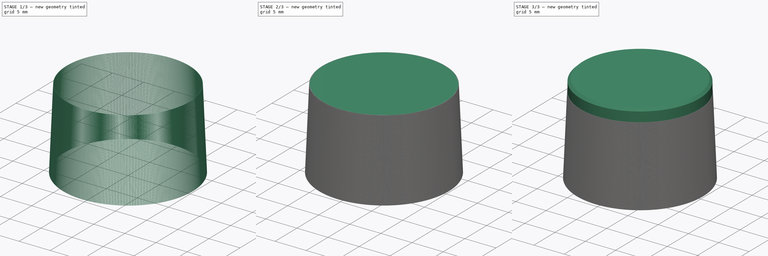
[diagram: build sequence overview — one tinted view per stage of 3, left to right]
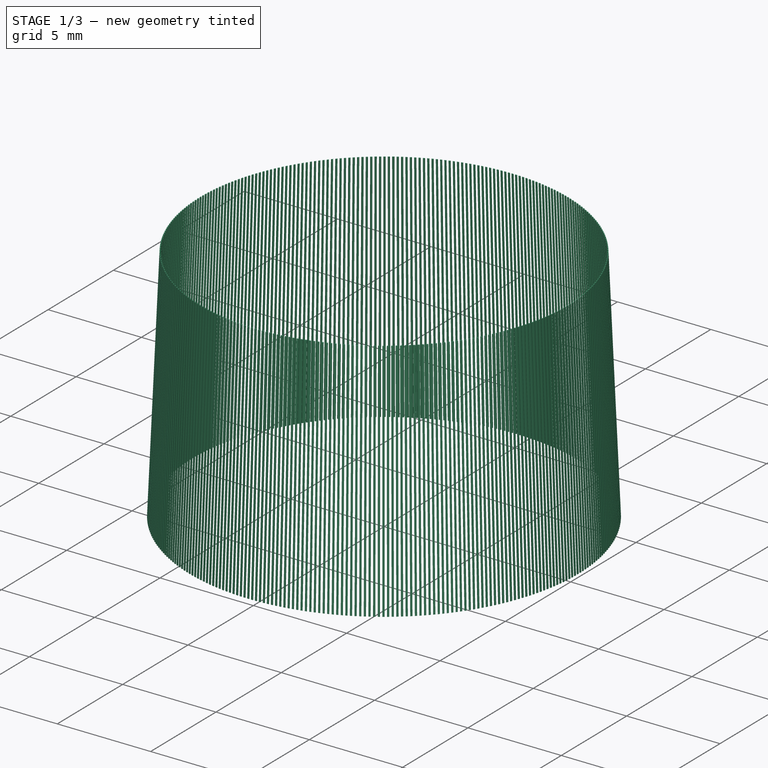
[diagram: stage 1 of 3 — iso view after this stage's code; geometry added in this stage tinted green]
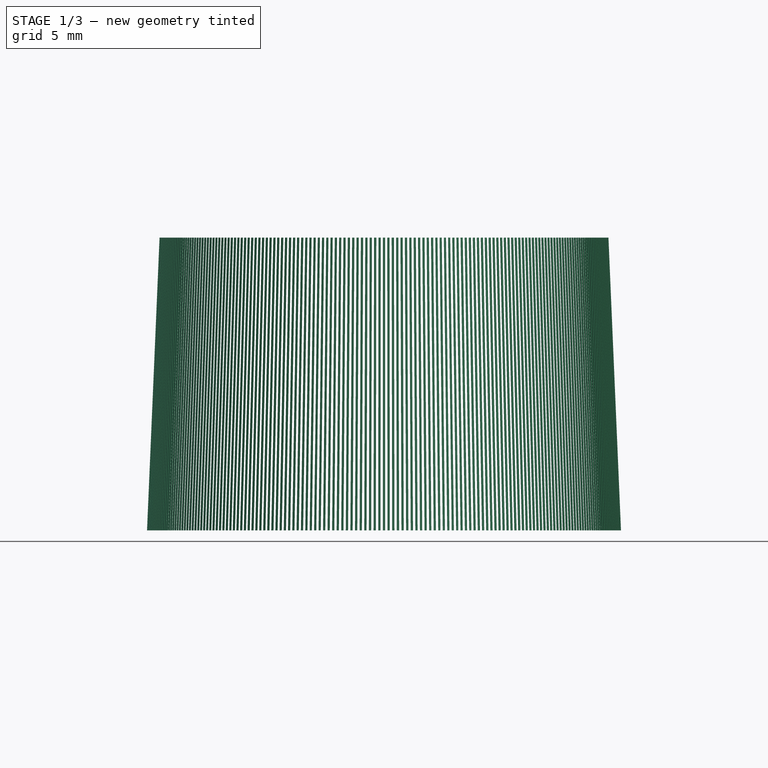
[diagram: stage 1 of 3 — front view after this stage's code; geometry added in this stage tinted green]
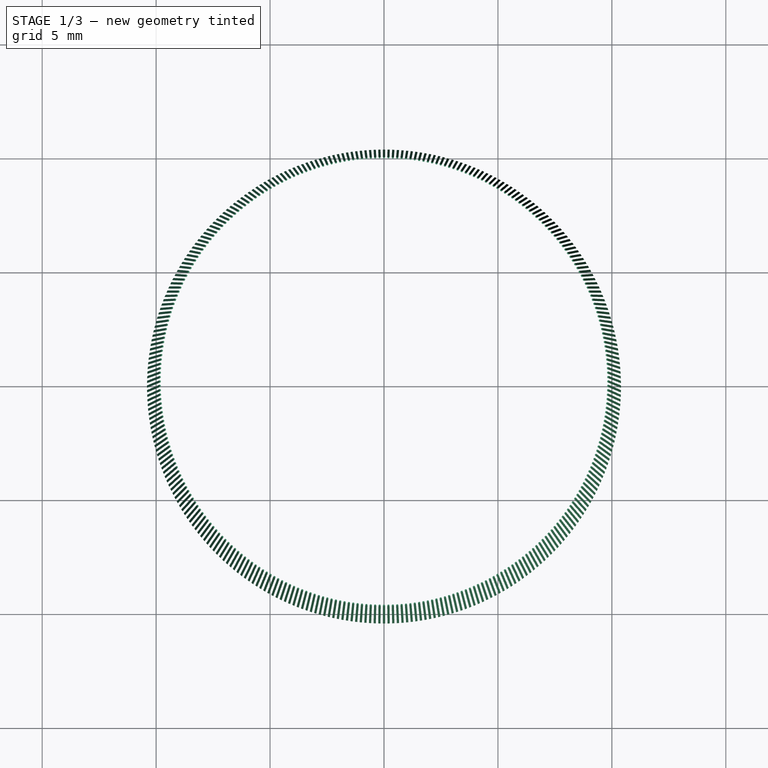
[diagram: stage 1 of 3 — top view after this stage's code; geometry added in this stage tinted green]
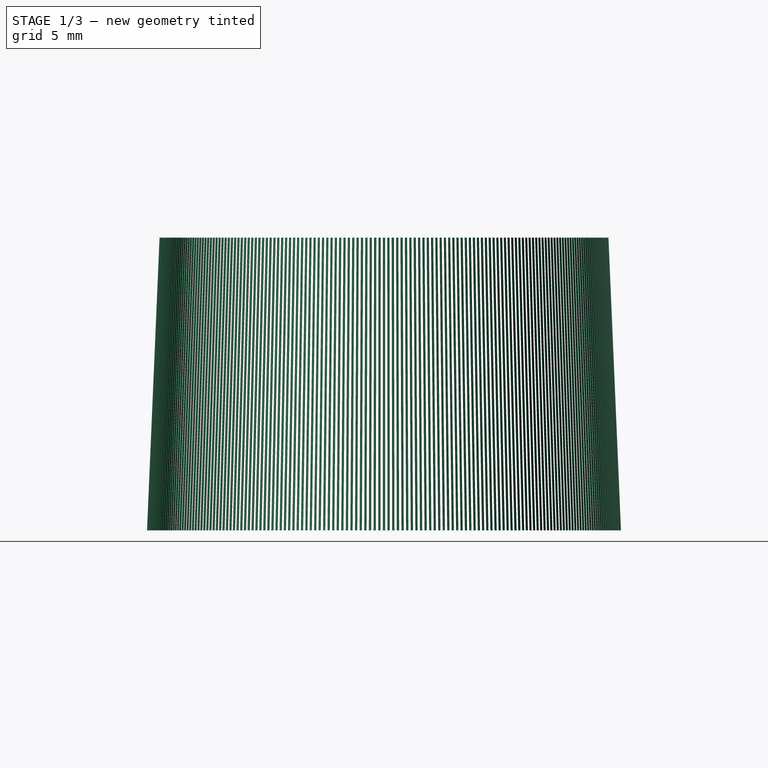
[diagram: stage 1 of 3 — right view after this stage's code; geometry added in this stage tinted green]
FCSTD DOCUMENT  (FreeCAD 0.16R6712 (Git))
Label: RotaryEncoderKnob2
License: All rights reserved
LicenseURL: http://en.wikipedia.org/wiki/All_rights_reserved
objects: Sketcher::SketchObject×3, App::FeaturePython×2, Part::Cone×1, Part::Sweep×1, Part::FeaturePython×1, Spreadsheet::Sheet×1, Part::Cut×1, Part::Extrusion×1, Part::Chamfer×1, PartDesign::Pocket×1, Part::Compound×1
note: 12 computed .brp shape members not serialized (recipe doc carries the construction recipe); baked Part::Feature solids carry a one-line shape summary decoded from their .brp

FEATURE [Part::Cone] Cone
  Angle = 360
  Height = 12.85
  Radius1 = 10.4
  Radius2 = 9.85
FEATURE [Sketcher::SketchObject] Sketch001
  expr: Constraints[9] = Cone.Radius1
  sketch-geometry (4):
    g0: LineSegment StartX=10.4 StartY=-0.05 StartZ=0 EndX=10.35 EndY=-0.035 EndZ=0
    g1: LineSegment StartX=10.35 StartY=-0.035 StartZ=0 EndX=10.35 EndY=0.035 EndZ=0
    g2: LineSegment StartX=10.35 StartY=0.035 StartZ=0 EndX=10.4 EndY=0.05 EndZ=0
    g3: LineSegment StartX=10.4 StartY=0.05 StartZ=0 EndX=10.4 EndY=-0.05 EndZ=0
  constraints (10):
    c: DistanceY(g1,g1) = 0.07
    c: DistanceY(g3,g3) = 0.1
    c: Coincident(g3,g0)
    c: Coincident(g0,g1)
    c: Coincident(g2,g1)
    c: Coincident(g3,g2)
    c: Symmetric(g0,g1,g-1)
    c: Symmetric(g0,g2,g-1)
    c: DistanceX(g0,g0) = 0.05
    c: DistanceX(g-1,g2) = 10.4
FEATURE [Part::Sweep] Sweep001
  Frenet = false
  Sections = -> [Sketch001]
  Solid = true
  Spine = -> Cone [Edge2]
  Transition = 1
FEATURE [Part::FeaturePython] Array  # Draft array (typed FeaturePython)
  Angle = 360
  ArrayType = 1
  Axis = (0,0,1)
  Base = -> Sweep001
  Center = (0,0,0)
  Fuse = true
  IntervalAxis = (0,0,0)
  IntervalX = (1,0,0)
  IntervalY = (0,1,0)
  IntervalZ = (0,0,0)
  NumberPolar = 320
  NumberX = 2
  NumberY = 2
  NumberZ = 1
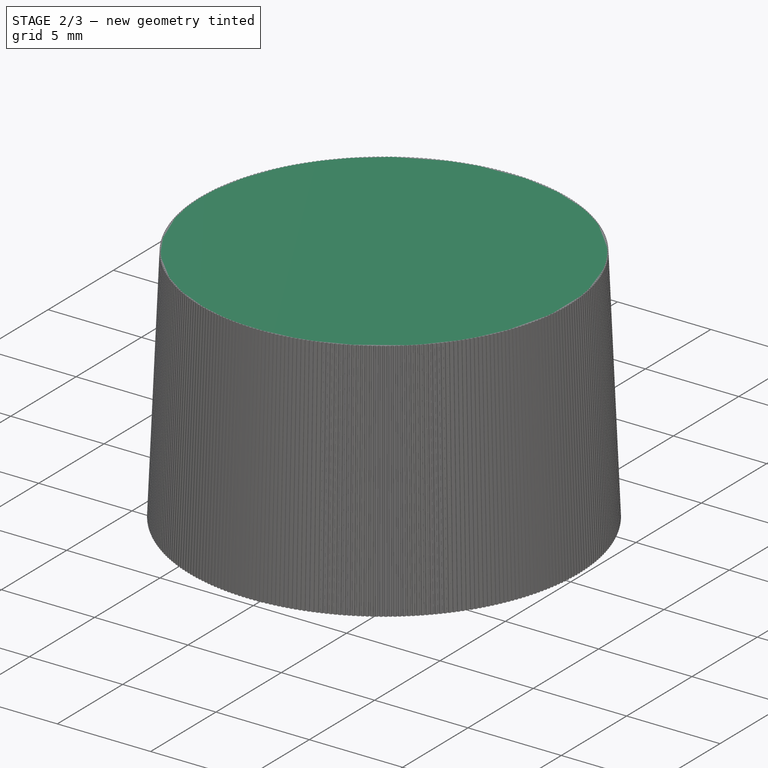
[diagram: stage 2 of 3 — iso view after this stage's code; geometry added in this stage tinted green]
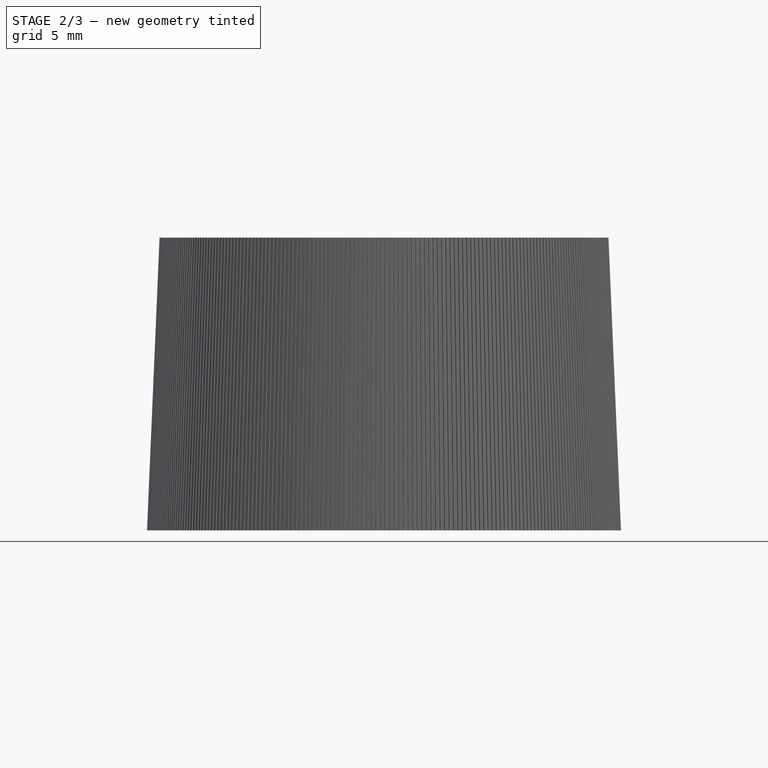
[diagram: stage 2 of 3 — front view after this stage's code; geometry added in this stage tinted green]
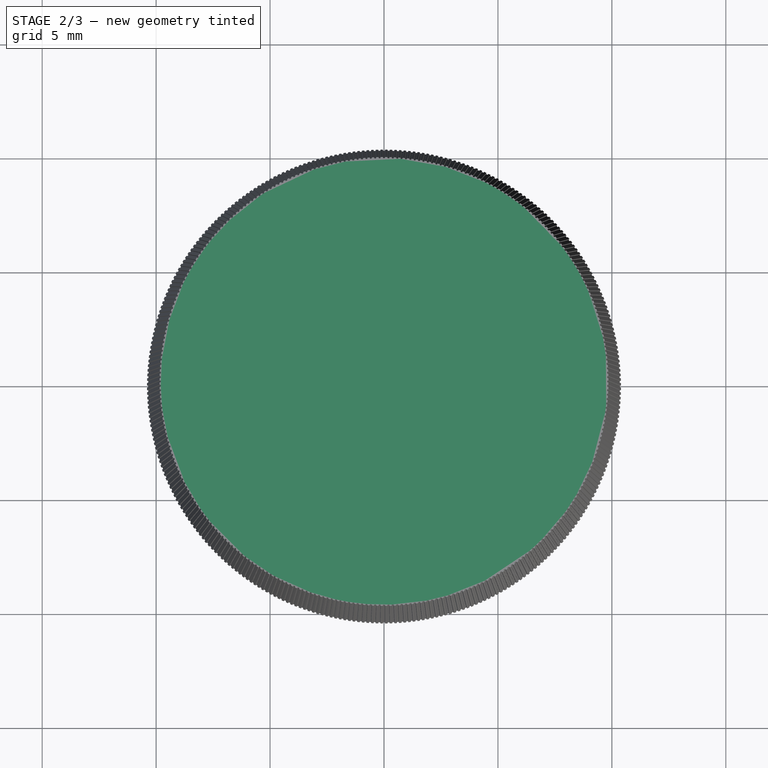
[diagram: stage 2 of 3 — top view after this stage's code; geometry added in this stage tinted green]
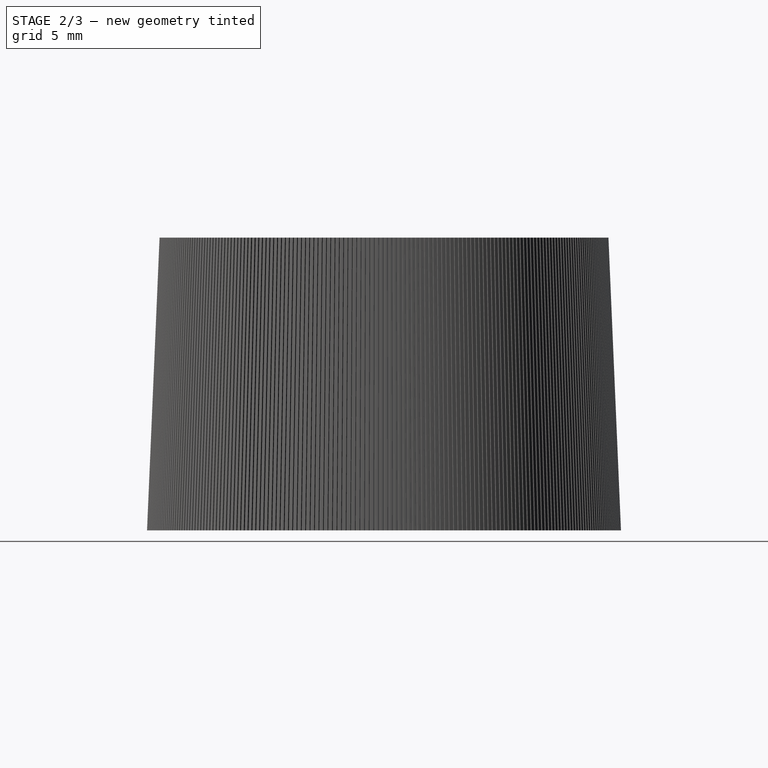
[diagram: stage 2 of 3 — right view after this stage's code; geometry added in this stage tinted green]
FEATURE [Spreadsheet::Sheet] Spreadsheet
  cells = A2=ShereCutoutRadius; B2(SphericRad)==Cone.Radius2 * 0.9; A3=HoleRadius; B3(HoleRadius)=3
FEATURE [Part::Cut] Cut002
  Base = -> Cone
  Tool = -> Array
FEATURE [Sketcher::SketchObject] Sketch002
  Placement = pos=(0,0,0) rot=(1,0,0;3.14159rad)
  Support = -> Cut002 [Face3]
  sketch-geometry (1):
    g0: Circle CenterX=0 CenterY=0 CenterZ=0 NormalX=0 NormalY=0 NormalZ=1 Radius=3
  constraints (2):
    c: Coincident(g0,g-1)
    c: Radius(g0) = 3
FEATURE [App::FeaturePython] Dimension  # Draft dimension (typed FeaturePython)
  Dimline = (-4.76014,-20.3705,0)
  Direction = (0,0,0)
  Distance = 10.4
  End = (0,0,0)
  Normal = (0,0,-1)
  Start = (-10.4,0,0)
FEATURE [PartDesign::Pocket] Pocket
  Length = 12
  Sketch = -> Sketch002
  Type = 0
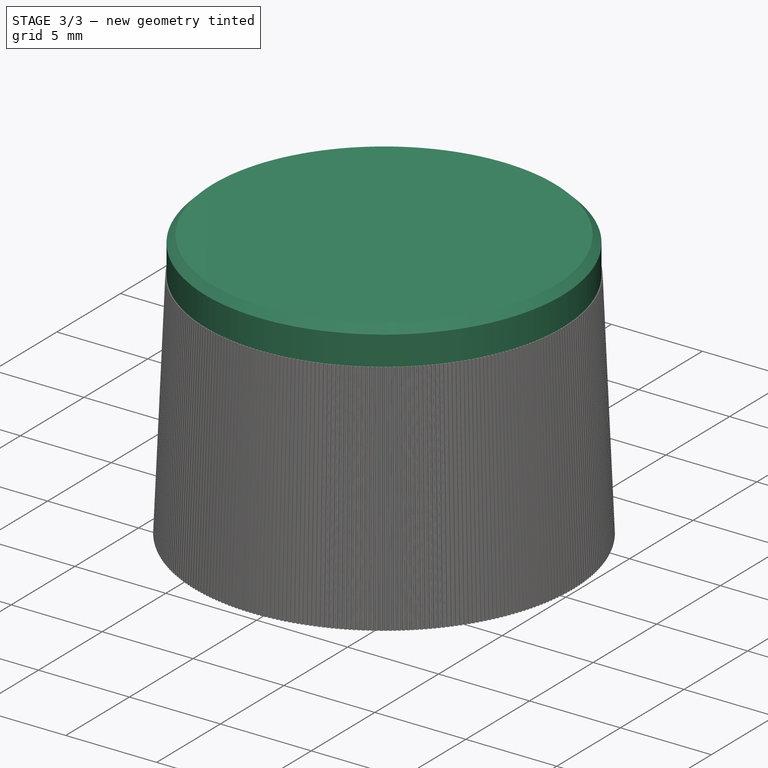
[diagram: stage 3 of 3 — iso view after this stage's code; geometry added in this stage tinted green]
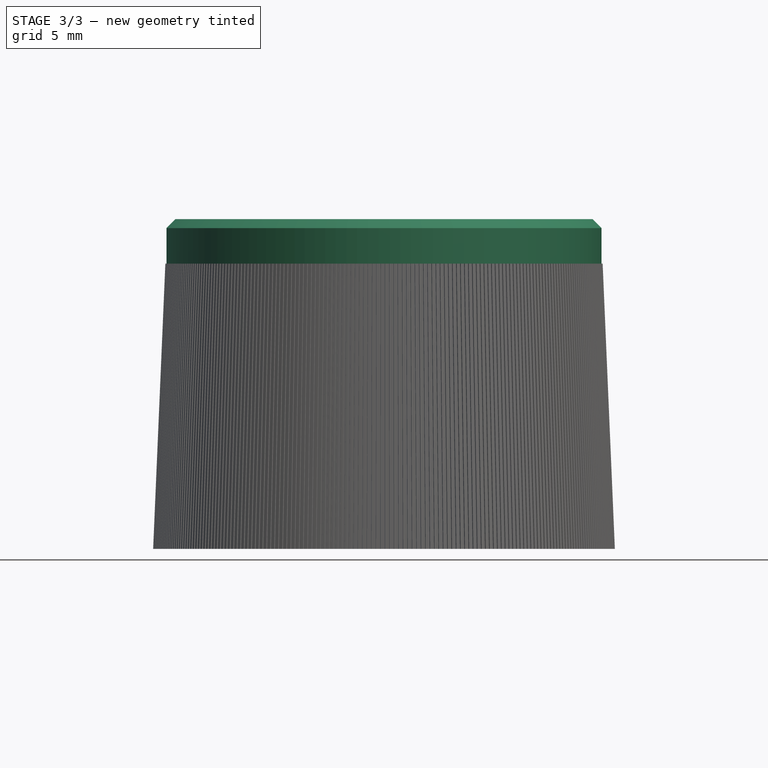
[diagram: stage 3 of 3 — front view after this stage's code; geometry added in this stage tinted green]
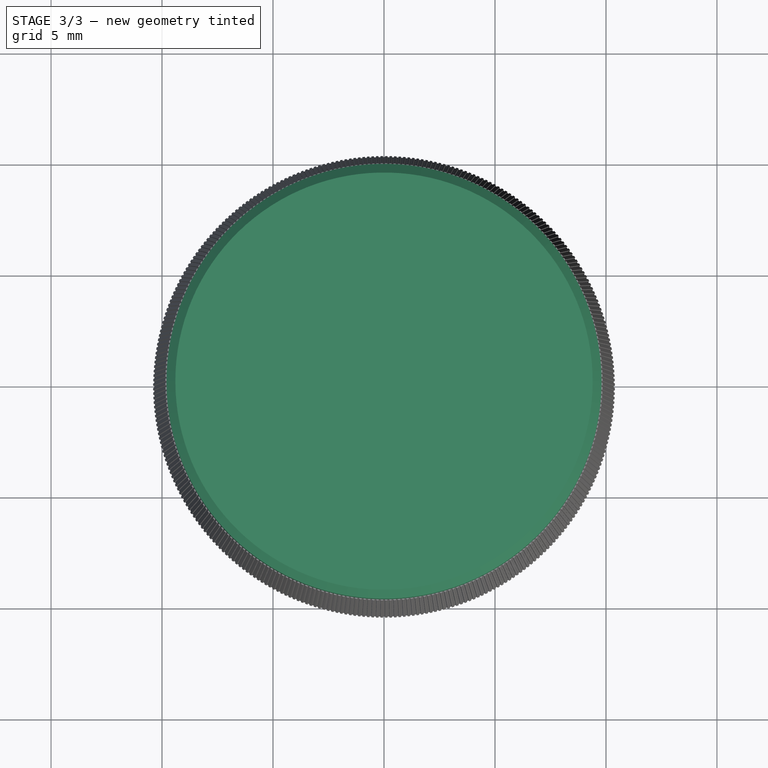
[diagram: stage 3 of 3 — top view after this stage's code; geometry added in this stage tinted green]
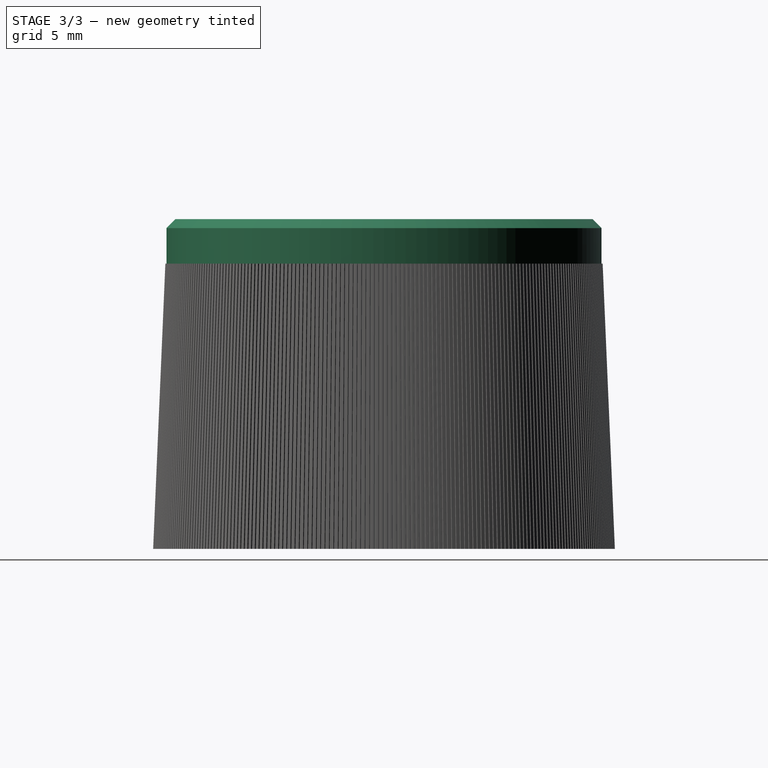
[diagram: stage 3 of 3 — right view after this stage's code; geometry added in this stage tinted green]
FEATURE [Sketcher::SketchObject] Sketch
  ExternalGeometry = -> [Cut002]
  Placement = pos=(0,0,12.85) rot=(0,0,1;0rad)
  Support = -> Cut002 [Face5]
  sketch-geometry (1):
    g0: Circle CenterX=0 CenterY=0 CenterZ=0 NormalX=0 NormalY=0 NormalZ=1 Radius=9.8
  constraints (2):
    c: Coincident(g0,g-1)
    c: Radius(g0) = 9.8
FEATURE [Part::Extrusion] Extrude
  Base = -> Sketch
  Dir = (0,0,2)
  Solid = true
FEATURE [Part::Chamfer] Chamfer
  Base = -> Extrude
  Edges = 1 edges r=0.4: [Edge3]
FEATURE [App::FeaturePython] Dimension001  # Draft dimension (typed FeaturePython)
  Dimline = (-29.7792,0,-8.52033)
  Direction = (0,0,0)
  Distance = 14.85
  End = (0,0,0)
  Normal = (0,-1,0)
  Start = (0,0,14.85)
FEATURE [Part::Compound] Compound  label="knob2"
  Links = -> [Pocket,Chamfer]
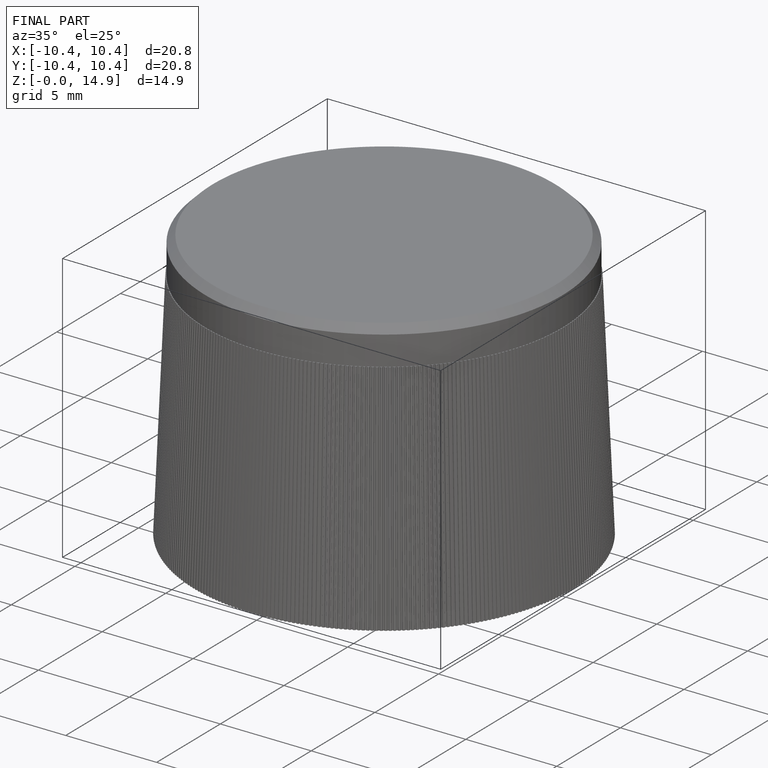
[diagram: finished part — iso view with bounding-box wireframe]
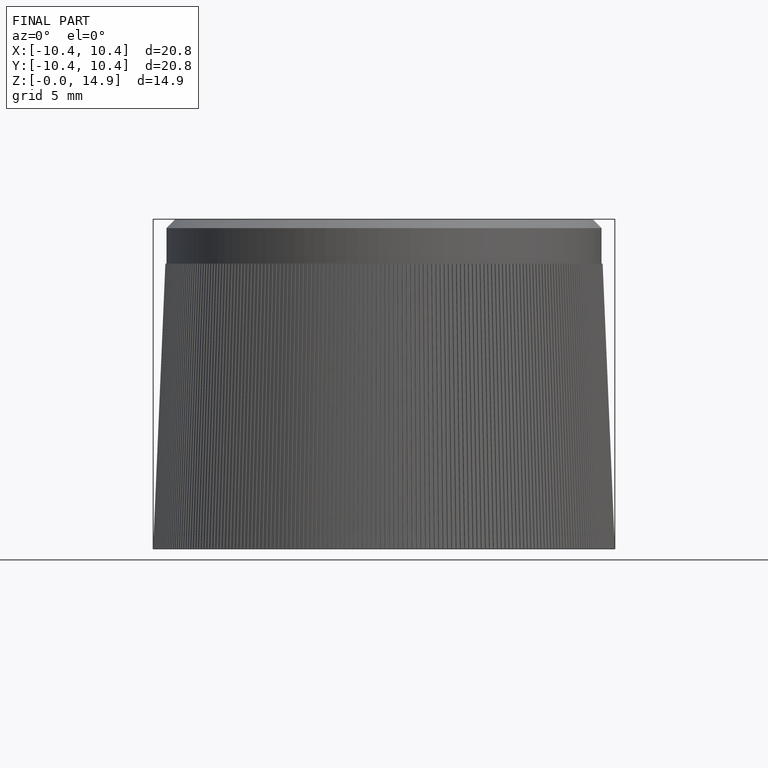
[diagram: finished part — front view with bounding-box wireframe]
